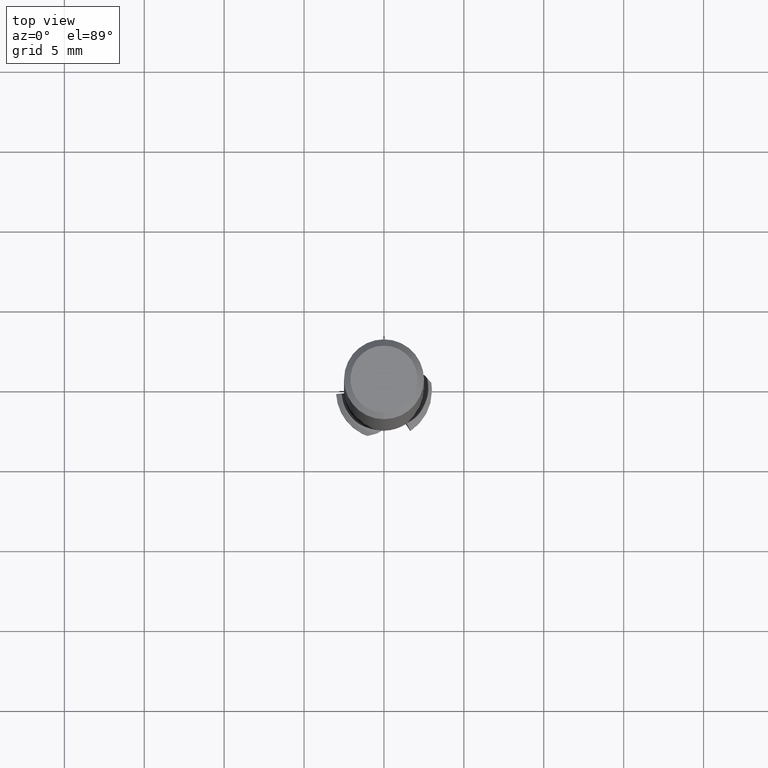
[diagram: clean part render]
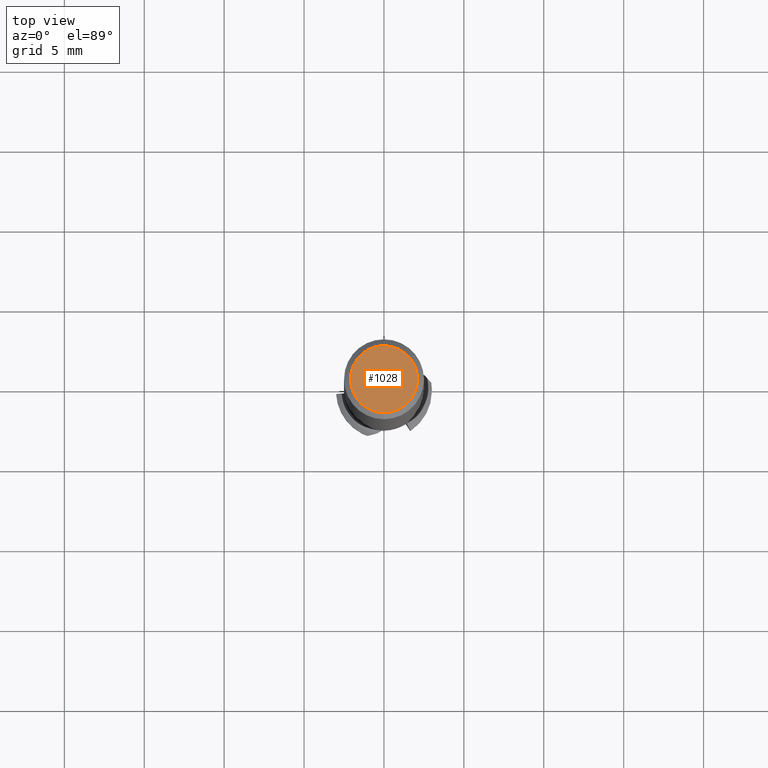
[diagram: same view with one face highlighted and labeled with its STEP entity id]
A machine part, top view. The second image highlights one B-rep face of the part: STEP entity #1028.
In plain terms, the highlighted planar face has unit normal (-0, 0, 1).
Its self-contained STEP definition (entity closure, byte-faithful):
#936=VERTEX_POINT('',#1846);
#1028=ADVANCED_FACE('',(#1946),#1947,.T.);
#1034=EDGE_CURVE('',#1258,#936,#1954,.T.);
#1258=VERTEX_POINT('',#2197);
#1262=EDGE_CURVE('',#936,#1258,#2201,.T.);
#1846=CARTESIAN_POINT('',(2.57167334302699E-016,-2.1,0.0));
#1946=FACE_OUTER_BOUND('',#3625,.T.);
#1947=PLANE('',#3626);
#1954=CIRCLE('',#3633,2.1);
#2197=CARTESIAN_POINT('',(0.0,2.1,0.0));
#2201=CIRCLE('',#4153,2.1);
#3625=EDGE_LOOP('',(#4907,#4908));
#3626=AXIS2_PLACEMENT_3D('',#4909,#4910,#4911);
#3633=AXIS2_PLACEMENT_3D('',#4926,#4927,#4928);
#4153=AXIS2_PLACEMENT_3D('',#5231,#5232,#5233);
#4907=ORIENTED_EDGE('',*,*,#1034,.F.);
#4908=ORIENTED_EDGE('',*,*,#1262,.F.);
#4909=CARTESIAN_POINT('',(0.0,1.05,0.0));
#4910=DIRECTION('',(-0.0,0.0,1.0));
#4911=DIRECTION('',(0.0,-1.0,0.0));
#4926=CARTESIAN_POINT('',(0.0,0.0,0.0));
#4927=DIRECTION('',(0.0,0.0,-1.0));
#4928=DIRECTION('',(0.0,1.0,0.0));
#5231=CARTESIAN_POINT('',(0.0,0.0,0.0));
#5232=DIRECTION('',(0.0,0.0,-1.0));
#5233=DIRECTION('',(0.0,1.0,0.0));